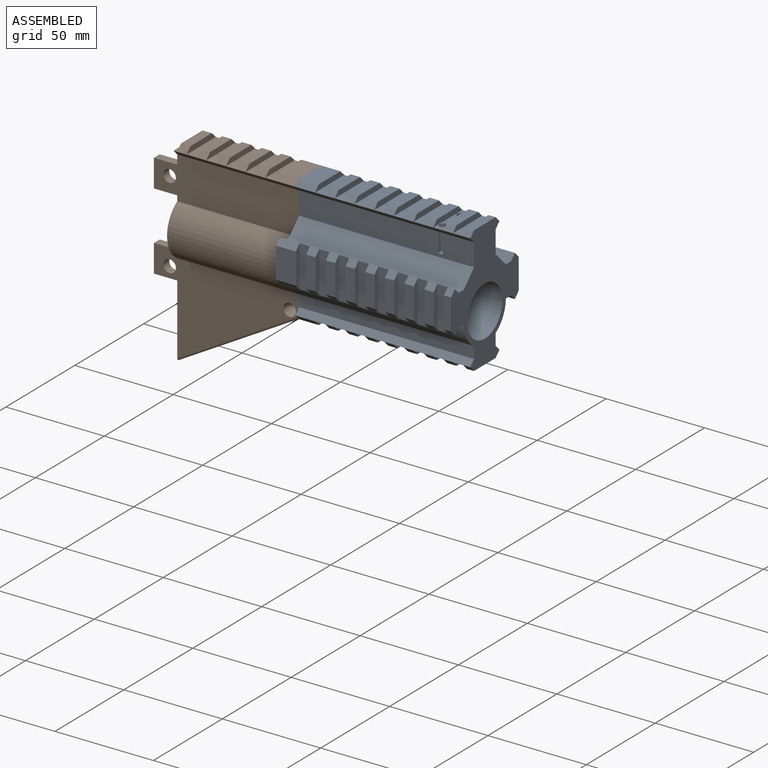
[diagram: assembled view]
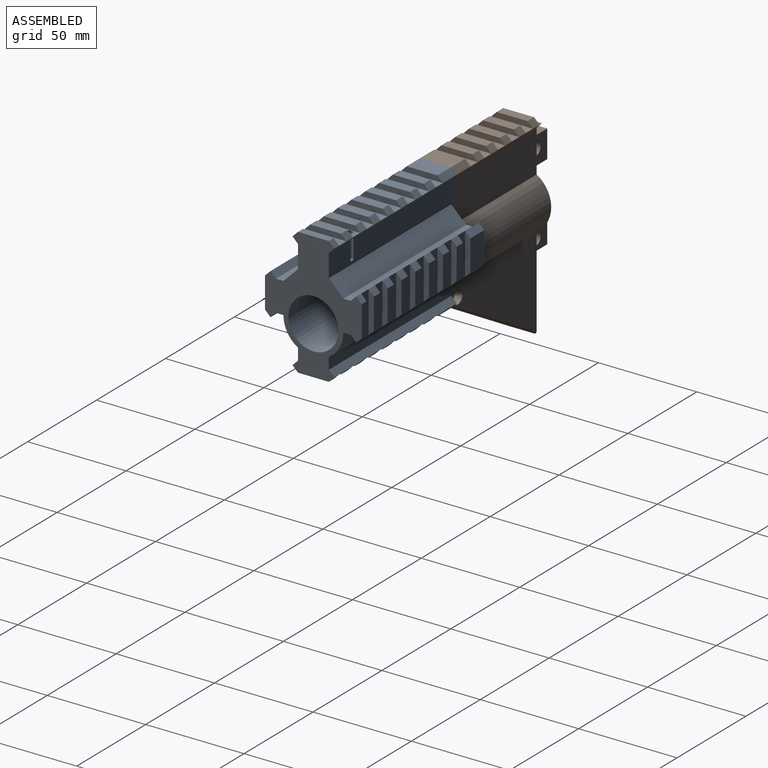
[diagram: assembled view, second angle]
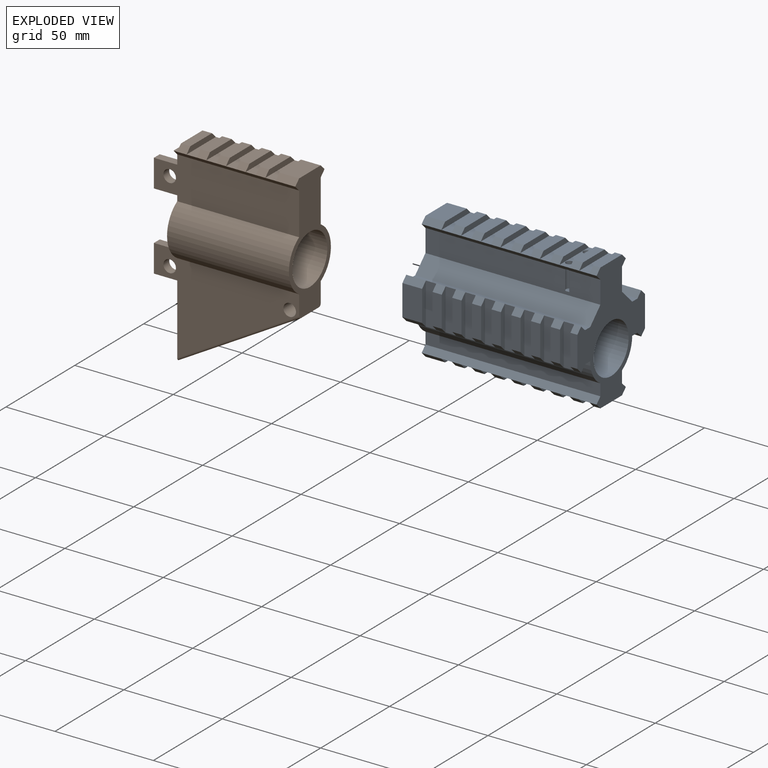
[diagram: exploded view]
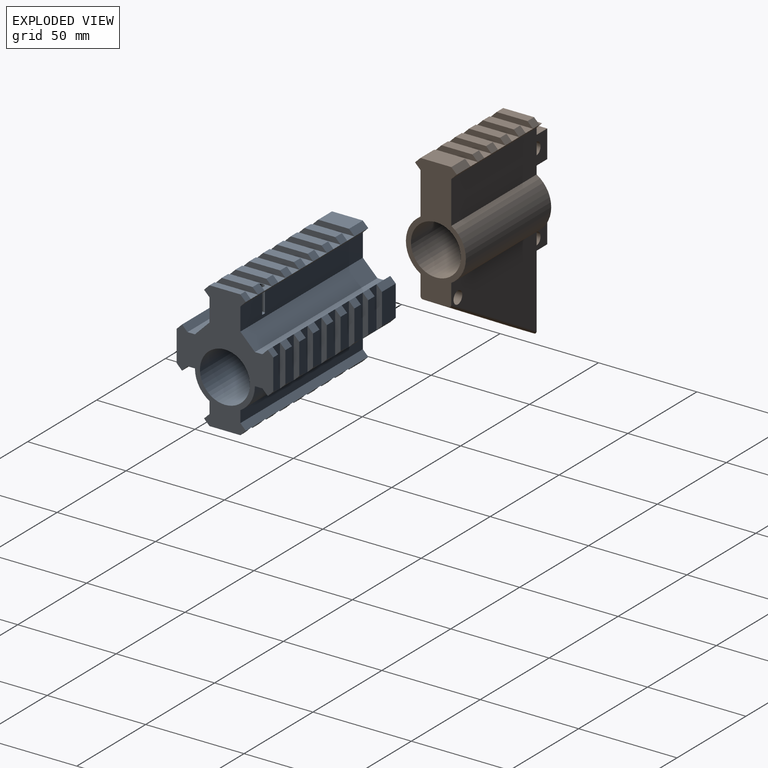
[diagram: exploded view, second angle]
ASSEMBLY  parts=2 mates=3
PART A: 231 faces, bbox 49.1x88.9x64.7 mm
  f0: plane 15.67x4.72mm, normal (-1,0,0), area 74mm2, adj f19,f27,f216,f224
  f1: plane 15.67x4.72mm, normal (-1,0,0), area 74mm2, adj f16,f24,f221,f225
  f2: plane 15.67x4.72mm, normal (-1,0,0), area 74mm2, adj f23,f31,f204,f218
  f3: plane 15.67x4.72mm, normal (-1,0,0), area 74mm2, adj f18,f26,f215,f219
  f4: plane 15.67x4.72mm, normal (-1,0,0), area 74mm2, adj f22,f30,f207,f212
  f5: plane 15.67x4.72mm, normal (-1,0,0), area 74mm2, adj f17,f25,f209,f222
  f6: plane 15.67x4.72mm, normal (-1,0,0), area 74mm2, adj f21,f29,f206,f210
  f7: plane 15.67x10.01mm, normal (-1,0,0), area 156.8mm2, adj f114,f118,f120,f203
  f8: plane 15.67x4.72mm, normal (1,0,0), area 74mm2, adj f32,f40,f199,f201
  f9: plane 15.67x4.72mm, normal (1,0,0), area 74mm2, adj f33,f41,f184,f198
  f10: plane 15.67x4.72mm, normal (1,0,0), area 74mm2, adj f34,f42,f193,f196
  f11: plane 15.67x4.72mm, normal (1,0,0), area 74mm2, adj f35,f43,f192,f202
  f12: plane 15.67x4.72mm, normal (1,0,0), area 74mm2, adj f36,f44,f187,f189
  f13: plane 15.67x3.56mm, normal (1,0,0), area 55.7mm2, adj f37,f45,f113,f186
  f14: plane 15.67x4.72mm, normal (1,0,0), area 74mm2, adj f38,f46,f181,f183
  f15: plane 15.67x4.72mm, normal (1,0,0), area 74mm2, adj f39,f47,f180,f190
  f16: plane 4.72x2.77mm, normal (-0.71,0,0.71), area 18.5mm2, adj f1,f117,f221,f225
  f17: plane 4.72x2.77mm, normal (-0.71,0,0.71), area 18.5mm2, adj f5,f117,f209,f222
  f18: plane 4.72x2.77mm, normal (-0.71,0,0.71), area 18.5mm2, adj f3,f117,f215,f219
  f19: plane 4.72x2.77mm, normal (-0.71,0,0.71), area 18.5mm2, adj f0,f117,f216,f224
  f20: plane 3.56x2.77mm, normal (-0.71,0,0.71), area 13.9mm2, adj f113,f117,f119,f213
  f21: plane 4.72x2.77mm, normal (-0.71,0,0.71), area 18.5mm2, adj f6,f117,f206,f210
  f22: plane 4.72x2.77mm, normal (-0.71,0,0.71), area 18.5mm2, adj f4,f117,f207,f212
  f23: plane 4.72x2.77mm, normal (-0.71,0,0.71), area 18.5mm2, adj f2,f117,f204,f218
  f24: plane 4.72x2.77mm, normal (-0.71,0,-0.71), area 18.5mm2, adj f1,f121,f221,f225
  f25: plane 4.72x2.77mm, normal (-0.71,0,-0.71), area 18.5mm2, adj f5,f121,f209,f222
  f26: plane 4.72x2.77mm, normal (-0.71,0,-0.71), area 18.5mm2, adj f3,f121,f215,f219
  f27: plane 4.72x2.77mm, normal (-0.71,0,-0.71), area 18.5mm2, adj f0,f121,f216,f224
  f28: plane 3.56x2.77mm, normal (-0.71,0,-0.71), area 13.9mm2, adj f113,f119,f121,f213
  f29: plane 4.72x2.77mm, normal (-0.71,0,-0.71), area 18.5mm2, adj f6,f121,f206,f210
  f30: plane 4.72x2.77mm, normal (-0.71,0,-0.71), area 18.5mm2, adj f4,f121,f207,f212
  f31: plane 4.72x2.77mm, normal (-0.71,0,-0.71), area 18.5mm2, adj f2,f121,f204,f218
  f32: plane 4.72x2.77mm, normal (0.71,0,0.71), area 18.5mm2, adj f8,f124,f199,f201
  f33: plane 4.72x2.77mm, normal (0.71,0,0.71), area 18.5mm2, adj f9,f124,f184,f198
  f34: plane 4.72x2.77mm, normal (0.71,0,0.71), area 18.5mm2, adj f10,f124,f193,f196
  f35: plane 4.72x2.77mm, normal (0.71,0,0.71), area 18.5mm2, adj f11,f124,f192,f202
  f36: plane 4.72x2.77mm, normal (0.71,0,0.71), area 18.5mm2, adj f12,f124,f187,f189
  f37: plane 3.56x2.77mm, normal (0.71,0,0.71), area 13.9mm2, adj f13,f113,f124,f186
  f38: plane 4.72x2.77mm, normal (0.71,0,0.71), area 18.5mm2, adj f14,f124,f181,f183
  f39: plane 4.72x2.77mm, normal (0.71,0,0.71), area 18.5mm2, adj f15,f124,f180,f190
  f40: plane 4.72x2.77mm, normal (0.71,0,-0.71), area 18.5mm2, adj f8,f128,f199,f201
  f41: plane 4.72x2.77mm, normal (0.71,0,-0.71), area 18.5mm2, adj f9,f128,f184,f198
  f42: plane 4.72x2.77mm, normal (0.71,0,-0.71), area 18.5mm2, adj f10,f128,f193,f196
  f43: plane 4.72x2.77mm, normal (0.71,0,-0.71), area 18.5mm2, adj f11,f128,f192,f202
  f44: plane 4.72x2.77mm, normal (0.71,0,-0.71), area 18.5mm2, adj f12,f128,f187,f189
  f45: plane 3.56x2.77mm, normal (0.71,0,-0.71), area 13.9mm2, adj f13,f113,f128,f186
  f46: plane 4.72x2.77mm, normal (0.71,0,-0.71), area 18.5mm2, adj f14,f128,f181,f183
  f47: plane 4.72x2.77mm, normal (0.71,0,-0.71), area 18.5mm2, adj f15,f128,f180,f190
  f48: plane 15.67x4.78mm, normal (0,0,-1), area 74.8mm2, adj f64,f72,f161,f178
  f49: plane 15.67x4.78mm, normal (0,0,-1), area 74.8mm2, adj f65,f73,f175,f176
  f50: plane 15.67x4.78mm, normal (0,0,-1), area 74.8mm2, adj f66,f74,f159,f170
  f51: plane 15.67x3.61mm, normal (0,0,-1), area 56.5mm2, adj f67,f75,f113,f169
  f52: plane 15.67x4.78mm, normal (0,0,-1), area 74.8mm2, adj f68,f76,f164,f167
  f53: plane 15.67x4.78mm, normal (0,0,-1), area 74.8mm2, adj f69,f77,f163,f171
  f54: plane 15.67x4.78mm, normal (0,0,-1), area 74.8mm2, adj f70,f78,f158,f165
  f55: plane 15.67x4.78mm, normal (0,0,-1), area 74.8mm2, adj f71,f79,f155,f173
  f56: plane 15.67x4.78mm, normal (0,0,1), area 74.8mm2, adj f83,f91,f145,f153
  f57: plane 15.67x4.78mm, normal (0,0,1), area 74.8mm2, adj f80,f88,f150,f154
  f58: plane 15.67x4.78mm, normal (0,0,1), area 74.8mm2, adj f81,f89,f147,f151
  f59: plane 15.67x4.78mm, normal (0,0,1), area 74.8mm2, adj f84,f92,f142,f144
  f60: plane 15.67x4.78mm, normal (0,0,1), area 74.8mm2, adj f85,f93,f139,f141
  f61: plane 15.67x4.78mm, normal (0,0,1), area 74.8mm2, adj f86,f94,f136,f138
  f62: plane 15.67x4.78mm, normal (0,0,1), area 74.8mm2, adj f87,f95,f133,f135
  f63: plane 15.67x10.01mm, normal (0,0,1), area 156.8mm2, adj f109,f111,f114,f132
  f64: plane 4.78x2.77mm, normal (-0.71,0,-0.71), area 18.7mm2, adj f48,f102,f161,f178
  f65: plane 4.78x2.77mm, normal (-0.71,0,-0.71), area 18.7mm2, adj f49,f102,f175,f176
  f66: plane 4.78x2.77mm, normal (-0.71,0,-0.71), area 18.7mm2, adj f50,f102,f159,f170
  f67: plane 3.61x2.77mm, normal (-0.71,0,-0.71), area 14.1mm2, adj f51,f102,f113,f169
  f68: plane 4.78x2.77mm, normal (-0.71,0,-0.71), area 18.7mm2, adj f52,f102,f164,f167
  f69: plane 4.78x2.77mm, normal (-0.71,0,-0.71), area 18.7mm2, adj f53,f102,f163,f171
  f70: plane 4.78x2.77mm, normal (-0.71,0,-0.71), area 18.7mm2, adj f54,f102,f158,f165
  f71: plane 4.78x2.77mm, normal (-0.71,0,-0.71), area 18.7mm2, adj f55,f102,f155,f173
  f72: plane 4.78x2.77mm, normal (0.71,0,-0.71), area 18.7mm2, adj f48,f106,f161,f178
  f73: plane 4.78x2.77mm, normal (0.71,0,-0.71), area 18.7mm2, adj f49,f106,f175,f176
  f74: plane 4.78x2.77mm, normal (0.71,0,-0.71), area 18.7mm2, adj f50,f106,f159,f170
  f75: plane 3.61x2.77mm, normal (0.71,0,-0.71), area 14.1mm2, adj f51,f106,f113,f169
  f76: plane 4.78x2.77mm, normal (0.71,0,-0.71), area 18.7mm2, adj f52,f106,f164,f167
  f77: plane 4.78x2.77mm, normal (0.71,0,-0.71), area 18.7mm2, adj f53,f106,f163,f171
  f78: plane 4.78x2.77mm, normal (0.71,0,-0.71), area 18.7mm2, adj f54,f106,f158,f165
  f79: plane 4.78x2.77mm, normal (0.71,0,-0.71), area 18.7mm2, adj f55,f106,f155,f173
  f80: plane 4.78x2.77mm, normal (0.71,0,0.71), area 18.7mm2, adj f57,f108,f150,f154
  f81: plane 4.78x2.77mm, normal (0.71,0,0.71), area 18.7mm2, adj f58,f108,f147,f151
  f82: plane 3.61x2.77mm, normal (0.71,0,0.71), area 14.1mm2, adj f108,f110,f113,f148
  f83: plane 4.78x2.77mm, normal (0.71,0,0.71), area 18.7mm2, adj f56,f108,f145,f153
  f84: plane 4.78x2.77mm, normal (0.71,0,0.71), area 18.7mm2, adj f59,f108,f142,f144
  f85: plane 4.78x2.77mm, normal (0.71,0,0.71), area 18.7mm2, adj f60,f108,f139,f141
  f86: plane 4.78x2.77mm, normal (0.71,0,0.71), area 18.7mm2, adj f61,f108,f136,f138
  f87: plane 4.78x2.77mm, normal (0.71,0,0.71), area 18.7mm2, adj f62,f108,f133,f135
  f88: plane 4.78x2.77mm, normal (-0.71,0,0.71), area 18.7mm2, adj f57,f98,f150,f154
  f89: plane 4.78x2.77mm, normal (-0.71,0,0.71), area 18.7mm2, adj f58,f98,f147,f151
  f90: plane 3.61x2.77mm, normal (-0.71,0,0.71), area 14.1mm2, adj f98,f110,f113,f148
  f91: plane 4.78x2.77mm, normal (-0.71,0,0.71), area 18.7mm2, adj f56,f98,f145,f153
  f92: plane 4.78x2.77mm, normal (-0.71,0,0.71), area 18.7mm2, adj f59,f98,f142,f144
  f93: plane 4.78x2.77mm, normal (-0.71,0,0.71), area 18.7mm2, adj f60,f98,f139,f141
  f94: plane 4.78x2.77mm, normal (-0.71,0,0.71), area 18.7mm2, adj f61,f98,f136,f138
  f95: plane 4.78x2.77mm, normal (-0.71,0,0.71), area 18.7mm2, adj f62,f98,f133,f135
  f96: plane 88.9x11.56mm, normal (1,0,0), area 1008mm2, adj f108,f113,f114,f126,f227,f228
  f97: cylinder r=15.24mm len=88.9mm, axis (0,1,0), area 1390.9mm2, adj f107,f113,f114,f127
  f98: plane 88.9x2.77mm, normal (-0.71,0,-0.71), area 347.5mm2, adj f88,f89,f90,f91,f92,f93,f94,f95
  f99: plane 88.9x11.56mm, normal (-1,0,0), area 1008mm2, adj f98,f113,f114,f115,f229,f230
  f100: cylinder r=15.24mm len=88.9mm, axis (0,1,0), area 1390.9mm2, adj f101,f113,f114,f122
  f101: plane 88.9x5.95mm, normal (-1,0,0), area 529.3mm2, adj f100,f102,f113,f114
  f102: plane 88.9x2.77mm, normal (-0.71,0,0.71), area 348.1mm2, adj f64,f65,f66,f67,f68,f69,f70,f71
  f103: plane 10.01x2.77mm, normal (-0.71,0,-0.71), area 39.2mm2, adj f102,f104,f114,f156
  f104: plane 15.67x10.01mm, normal (0,0,-1), area 156.8mm2, adj f103,f105,f114,f156
  f105: plane 10.01x2.77mm, normal (0.71,0,-0.71), area 39.2mm2, adj f104,f106,f114,f156
  f106: plane 88.9x2.77mm, normal (0.71,0,0.71), area 348.1mm2, adj f72,f73,f74,f75,f76,f77,f78,f79
  f107: plane 88.9x5.95mm, normal (1,0,0), area 529.3mm2, adj f97,f106,f113,f114
  f108: plane 88.9x2.77mm, normal (0.71,0,-0.71), area 347.5mm2, adj f80,f81,f82,f83,f84,f85,f86,f87
  f109: plane 10.01x2.77mm, normal (0.71,0,0.71), area 39.2mm2, adj f63,f108,f114,f132
  f110: plane 15.67x3.61mm, normal (0,0,1), area 56.5mm2, adj f82,f90,f113,f148
  f111: plane 10.01x2.77mm, normal (-0.71,0,0.71), area 39.2mm2, adj f63,f98,f114,f132
  f112: cylinder r=12.7mm len=88.9mm, axis (0,1,0), area 7093.9mm2, adj f113,f114
  f113: plane 64.67x49.12mm, normal (0,-1,0), area 1283.2mm2, adj f13,f20,f28,f37,f45,f51,f67,f75
  f114: plane 64.67x49.12mm, normal (0,1,0), area 1283.2mm2, adj f7,f63,f96,f97,f98,f99,f100,f101
  f115: plane 88.9x7.4mm, normal (-0.71,0,0.71), area 930.9mm2, adj f99,f113,f114,f116
  f116: plane 88.9x3.78mm, normal (0,0,1), area 336.5mm2, adj f113,f114,f115,f117
  f117: plane 88.9x2.77mm, normal (0.71,0,0.71), area 348.1mm2, adj f16,f17,f18,f19,f20,f21,f22,f23
  f118: plane 10.01x2.77mm, normal (-0.71,0,0.71), area 39.2mm2, adj f7,f114,f117,f203
  f119: plane 15.67x3.56mm, normal (-1,0,0), area 55.7mm2, adj f20,f28,f113,f213
  f120: plane 10.01x2.77mm, normal (-0.71,0,-0.71), area 39.2mm2, adj f7,f114,f121,f203
  f121: plane 88.9x2.77mm, normal (0.71,0,-0.71), area 348.1mm2, adj f24,f25,f26,f27,f28,f29,f30,f31
  f122: plane 88.9x3.78mm, normal (0,0,-1), area 336.5mm2, adj f100,f113,f114,f121
  f123: plane 10.01x2.77mm, normal (0.71,0,0.71), area 39.2mm2, adj f114,f124,f130,f194
  f124: plane 88.9x2.77mm, normal (-0.71,0,0.71), area 348.1mm2, adj f32,f33,f34,f35,f36,f37,f38,f39
  f125: plane 88.9x3.78mm, normal (0,0,1), area 336.5mm2, adj f113,f114,f124,f126
  f126: plane 88.9x7.4mm, normal (0.71,0,0.71), area 930.9mm2, adj f96,f113,f114,f125
  f127: plane 88.9x3.78mm, normal (0,0,-1), area 336.5mm2, adj f97,f113,f114,f128
  f128: plane 88.9x2.77mm, normal (-0.71,0,-0.71), area 348.1mm2, adj f40,f41,f42,f43,f44,f45,f46,f47
  f129: plane 10.01x2.77mm, normal (0.71,0,-0.71), area 39.2mm2, adj f114,f128,f130,f194
  f130: plane 15.67x10.01mm, normal (1,0,0), area 156.8mm2, adj f114,f123,f129,f194
  f131: plane 21.21x5.23mm, normal (0,0,1), area 111mm2, adj f98,f108,f132,f133
  f132: plane 21.21x2.77mm, normal (0,-1,0), area 51.1mm2, adj f63,f109,f111,f131
  f133: plane 21.21x2.77mm, normal (0,1,0), area 51.1mm2, adj f62,f87,f95,f131
  f134: plane 21.21x5.23mm, normal (0,0,1), area 111mm2, adj f98,f108,f135,f136
  f135: plane 21.21x2.77mm, normal (0,-1,0), area 51.1mm2, adj f62,f87,f95,f134
  f136: plane 21.21x2.77mm, normal (0,1,0), area 51.1mm2, adj f61,f86,f94,f134
  f137: plane 21.21x5.23mm, normal (0,0,1), area 111mm2, adj f98,f108,f138,f139
  f138: plane 21.21x2.77mm, normal (0,-1,0), area 51.1mm2, adj f61,f86,f94,f137
  f139: plane 21.21x2.77mm, normal (0,1,0), area 51.1mm2, adj f60,f85,f93,f137
  f140: plane 21.21x5.23mm, normal (0,0,1), area 111mm2, adj f98,f108,f141,f142
  f141: plane 21.21x2.77mm, normal (0,-1,0), area 51.1mm2, adj f60,f85,f93,f140
  f142: plane 21.21x2.77mm, normal (0,1,0), area 51.1mm2, adj f59,f84,f92,f140
  f143: plane 21.21x5.23mm, normal (0,0,1), area 111mm2, adj f98,f108,f144,f145
  f144: plane 21.21x2.77mm, normal (0,-1,0), area 51.1mm2, adj f59,f84,f92,f143
  f145: plane 21.21x2.77mm, normal (0,1,0), area 51.1mm2, adj f56,f83,f91,f143
  f146: plane 21.21x5.23mm, normal (0,0,1), area 111mm2, adj f98,f108,f147,f148
  f147: plane 21.21x2.77mm, normal (0,-1,0), area 51.1mm2, adj f58,f81,f89,f146
  f148: plane 21.21x2.77mm, normal (0,1,0), area 51.1mm2, adj f82,f90,f110,f146
  f149: plane 21.21x5.23mm, normal (0,0,1), area 91.1mm2, adj f98,f108,f150,f151,f227,f229
  f150: plane 21.21x2.77mm, normal (0,-1,0), area 51.1mm2, adj f57,f80,f88,f149
  f151: plane 21.21x2.77mm, normal (0,1,0), area 51.1mm2, adj f58,f81,f89,f149
  f152: plane 21.21x5.23mm, normal (0,0,1), area 111mm2, adj f98,f108,f153,f154
  f153: plane 21.21x2.77mm, normal (0,-1,0), area 51.1mm2, adj f56,f83,f91,f152
  f154: plane 21.21x2.77mm, normal (0,1,0), area 51.1mm2, adj f57,f80,f88,f152
  f155: plane 21.21x2.77mm, normal (0,1,0), area 51.1mm2, adj f55,f71,f79,f157
  f156: plane 21.21x2.77mm, normal (0,-1,0), area 51.1mm2, adj f103,f104,f105,f157
  f157: plane 21.21x5.23mm, normal (0,0,-1), area 111mm2, adj f102,f106,f155,f156
  f158: plane 21.21x2.77mm, normal (0,1,0), area 51.1mm2, adj f54,f70,f78,f160
  f159: plane 21.21x2.77mm, normal (0,-1,0), area 51.1mm2, adj f50,f66,f74,f160
  f160: plane 21.21x5.23mm, normal (0,0,-1), area 111mm2, adj f102,f106,f158,f159
  f161: plane 21.21x2.77mm, normal (0,-1,0), area 51.1mm2, adj f48,f64,f72,f162
  f162: plane 21.21x5.23mm, normal (0,0,-1), area 111mm2, adj f102,f106,f161,f163
  f163: plane 21.21x2.77mm, normal (0,1,0), area 51.1mm2, adj f53,f69,f77,f162
  f164: plane 21.21x2.77mm, normal (0,1,0), area 51.1mm2, adj f52,f68,f76,f166
  f165: plane 21.21x2.77mm, normal (0,-1,0), area 51.1mm2, adj f54,f70,f78,f166
  f166: plane 21.21x5.23mm, normal (0,0,-1), area 111mm2, adj f102,f106,f164,f165
  f167: plane 21.21x2.77mm, normal (0,-1,0), area 51.1mm2, adj f52,f68,f76,f168
  f168: plane 21.21x5.23mm, normal (0,0,-1), area 111mm2, adj f102,f106,f167,f169
  f169: plane 21.21x2.77mm, normal (0,1,0), area 51.1mm2, adj f51,f67,f75,f168
  f170: plane 21.21x2.77mm, normal (0,1,0), area 51.1mm2, adj f50,f66,f74,f172
  f171: plane 21.21x2.77mm, normal (0,-1,0), area 51.1mm2, adj f53,f69,f77,f172
  f172: plane 21.21x5.23mm, normal (0,0,-1), area 111mm2, adj f102,f106,f170,f171
  f173: plane 21.21x2.77mm, normal (0,-1,0), area 51.1mm2, adj f55,f71,f79,f174
  f174: plane 21.21x5.23mm, normal (0,0,-1), area 111mm2, adj f102,f106,f173,f175
  f175: plane 21.21x2.77mm, normal (0,1,0), area 51.1mm2, adj f49,f65,f73,f174
  f176: plane 21.21x2.77mm, normal (0,-1,0), area 51.1mm2, adj f49,f65,f73,f177
  f177: plane 21.21x5.23mm, normal (0,0,-1), area 111mm2, adj f102,f106,f176,f178
  f178: plane 21.21x2.77mm, normal (0,1,0), area 51.1mm2, adj f48,f64,f72,f177
  f179: plane 21.21x5.28mm, normal (1,0,0), area 112.1mm2, adj f124,f128,f180,f181
  f180: plane 21.21x2.77mm, normal (0,1,0), area 51.1mm2, adj f15,f39,f47,f179
  f181: plane 21.21x2.77mm, normal (0,-1,0), area 51.1mm2, adj f14,f38,f46,f179
  f182: plane 21.21x5.28mm, normal (1,0,0), area 112.1mm2, adj f124,f128,f183,f184
  f183: plane 21.21x2.77mm, normal (0,1,0), area 51.1mm2, adj f14,f38,f46,f182
  f184: plane 21.21x2.77mm, normal (0,-1,0), area 51.1mm2, adj f9,f33,f41,f182
  f185: plane 21.21x5.28mm, normal (1,0,0), area 112.1mm2, adj f124,f128,f186,f187
  f186: plane 21.21x2.77mm, normal (0,1,0), area 51.1mm2, adj f13,f37,f45,f185
  f187: plane 21.21x2.77mm, normal (0,-1,0), area 51.1mm2, adj f12,f36,f44,f185
  f188: plane 21.21x5.28mm, normal (1,0,0), area 112.1mm2, adj f124,f128,f189,f190
  f189: plane 21.21x2.77mm, normal (0,1,0), area 51.1mm2, adj f12,f36,f44,f188
  f190: plane 21.21x2.77mm, normal (0,-1,0), area 51.1mm2, adj f15,f39,f47,f188
  f191: plane 21.21x5.28mm, normal (1,0,0), area 112.1mm2, adj f124,f128,f192,f193
  f192: plane 21.21x2.77mm, normal (0,1,0), area 51.1mm2, adj f11,f35,f43,f191
  f193: plane 21.21x2.77mm, normal (0,-1,0), area 51.1mm2, adj f10,f34,f42,f191
  f194: plane 21.21x2.77mm, normal (0,-1,0), area 51.1mm2, adj f123,f129,f130,f195
  f195: plane 21.21x5.28mm, normal (1,0,0), area 112.1mm2, adj f124,f128,f194,f196
  f196: plane 21.21x2.77mm, normal (0,1,0), area 51.1mm2, adj f10,f34,f42,f195
  f197: plane 21.21x5.28mm, normal (1,0,0), area 112.1mm2, adj f124,f128,f198,f199
  f198: plane 21.21x2.77mm, normal (0,1,0), area 51.1mm2, adj f9,f33,f41,f197
  f199: plane 21.21x2.77mm, normal (0,-1,0), area 51.1mm2, adj f8,f32,f40,f197
  f200: plane 21.21x5.28mm, normal (1,0,0), area 112.1mm2, adj f124,f128,f201,f202
  f201: plane 21.21x2.77mm, normal (0,1,0), area 51.1mm2, adj f8,f32,f40,f200
  f202: plane 21.21x2.77mm, normal (0,-1,0), area 51.1mm2, adj f11,f35,f43,f200
  f203: plane 21.21x2.77mm, normal (0,-1,0), area 51.1mm2, adj f7,f118,f120,f205
  f204: plane 21.21x2.77mm, normal (0,1,0), area 51.1mm2, adj f2,f23,f31,f205
  f205: plane 21.21x5.28mm, normal (-1,0,0), area 112.1mm2, adj f117,f121,f203,f204
  f206: plane 21.21x2.77mm, normal (0,-1,0), area 51.1mm2, adj f6,f21,f29,f208
  f207: plane 21.21x2.77mm, normal (0,1,0), area 51.1mm2, adj f4,f22,f30,f208
  f208: plane 21.21x5.28mm, normal (-1,0,0), area 112.1mm2, adj f117,f121,f206,f207
  f209: plane 21.21x2.77mm, normal (0,-1,0), area 51.1mm2, adj f5,f17,f25,f211
  f210: plane 21.21x2.77mm, normal (0,1,0), area 51.1mm2, adj f6,f21,f29,f211
  f211: plane 21.21x5.28mm, normal (-1,0,0), area 112.1mm2, adj f117,f121,f209,f210
  f212: plane 21.21x2.77mm, normal (0,-1,0), area 51.1mm2, adj f4,f22,f30,f214
  f213: plane 21.21x2.77mm, normal (0,1,0), area 51.1mm2, adj f20,f28,f119,f214
  f214: plane 21.21x5.28mm, normal (-1,0,0), area 112.1mm2, adj f117,f121,f212,f213
  f215: plane 21.21x2.77mm, normal (0,-1,0), area 51.1mm2, adj f3,f18,f26,f217
  f216: plane 21.21x2.77mm, normal (0,1,0), area 51.1mm2, adj f0,f19,f27,f217
  f217: plane 21.21x5.28mm, normal (-1,0,0), area 112.1mm2, adj f117,f121,f215,f216
  f218: plane 21.21x2.77mm, normal (0,-1,0), area 51.1mm2, adj f2,f23,f31,f220
  f219: plane 21.21x2.77mm, normal (0,1,0), area 51.1mm2, adj f3,f18,f26,f220
  f220: plane 21.21x5.28mm, normal (-1,0,0), area 112.1mm2, adj f117,f121,f218,f219
  f221: plane 21.21x2.77mm, normal (0,-1,0), area 51.1mm2, adj f1,f16,f24,f223
  f222: plane 21.21x2.77mm, normal (0,1,0), area 51.1mm2, adj f5,f17,f25,f223
  f223: plane 21.21x5.28mm, normal (-1,0,0), area 112.1mm2, adj f117,f121,f221,f222
  f224: plane 21.21x2.77mm, normal (0,-1,0), area 51.1mm2, adj f0,f19,f27,f226
  f225: plane 21.21x2.77mm, normal (0,1,0), area 51.1mm2, adj f1,f16,f24,f226
  f226: plane 21.21x5.28mm, normal (-1,0,0), area 112.1mm2, adj f117,f121,f224,f225
  f227: cylinder r=1.78mm len=12.7mm, axis (0,0,1), area 120.9mm2, adj f96,f108,f149,f228
  f228: plane 3.56x3.26mm, normal (0,0,1), area 9.5mm2, adj f96,f227
  f229: cylinder r=1.78mm len=12.7mm, axis (0,0,1), area 120.9mm2, adj f98,f99,f149,f230
  f230: plane 3.56x3.26mm, normal (0,0,1), area 9.5mm2, adj f99,f229
PART B: 64 faces, bbox 78.4x30.5x100.4 mm
  f0: plane 15.67x4.78mm, normal (0,0,1), area 74.8mm2, adj f5,f10,f41,f45
  f1: plane 15.67x4.78mm, normal (0,0,1), area 74.8mm2, adj f6,f11,f38,f42
  f2: plane 15.67x4.78mm, normal (0,0,1), area 74.8mm2, adj f7,f12,f35,f39
  f3: plane 15.67x4.78mm, normal (0,0,1), area 74.8mm2, adj f8,f13,f32,f36
  f4: plane 15.67x4.78mm, normal (0,0,1), area 74.8mm2, adj f9,f14,f30,f33
  f5: plane 4.78x2.77mm, normal (0,0.71,0.71), area 18.7mm2, adj f0,f25,f41,f45
  f6: plane 4.78x2.77mm, normal (0,0.71,0.71), area 18.7mm2, adj f1,f25,f38,f42
  f7: plane 4.78x2.77mm, normal (0,0.71,0.71), area 18.7mm2, adj f2,f25,f35,f39
  f8: plane 4.78x2.77mm, normal (0,0.71,0.71), area 18.7mm2, adj f3,f25,f32,f36
  f9: plane 4.78x2.77mm, normal (0,0.71,0.71), area 18.7mm2, adj f4,f25,f30,f33
  f10: plane 4.78x2.77mm, normal (0,-0.71,0.71), area 18.7mm2, adj f0,f29,f41,f45
  f11: plane 4.78x2.77mm, normal (0,-0.71,0.71), area 18.7mm2, adj f1,f29,f38,f42
  f12: plane 4.78x2.77mm, normal (0,-0.71,0.71), area 18.7mm2, adj f2,f29,f35,f39
  f13: plane 4.78x2.77mm, normal (0,-0.71,0.71), area 18.7mm2, adj f3,f29,f32,f36
  f14: plane 4.78x2.77mm, normal (0,-0.71,0.71), area 18.7mm2, adj f4,f29,f30,f33
  f15: plane 61.93x45.78mm, normal (0,-1,0), area 1696.1mm2, adj f20,f21,f22,f48,f49
  f16: plane 61.93x45.78mm, normal (0,1,0), area 1696.1mm2, adj f20,f21,f24,f47,f49
  f17: plane 61.93x21.5mm, normal (0,-1,0), area 1331.3mm2, adj f20,f22,f29,f49
  f18: plane 61.93x21.5mm, normal (0,1,0), area 1331.3mm2, adj f20,f24,f25,f49
  f19: plane 61.93x35.75mm, normal (0.5,0,-0.87), area 939mm2, adj f20,f47,f48,f49
  f20: plane 64.67x30.48mm, normal (1,0,0), area 795.2mm2, adj f15,f16,f17,f18,f19,f22,f23,f24
  f21: cylinder r=3.17mm len=15.67mm, axis (0,1,0), area 312.6mm2, adj f15,f16
  f22: cylinder r=15.24mm len=61.93mm, axis (1,0,0), area 1945.5mm2, adj f15,f17,f20,f49
  f23: cylinder r=12.7mm len=61.93mm, axis (1,0,0), area 4941.4mm2, adj f20,f49,f55,f61
  f24: cylinder r=15.24mm len=61.93mm, axis (1,0,0), area 1945.5mm2, adj f16,f18,f20,f49
  f25: plane 61.93x2.77mm, normal (0,0.71,-0.71), area 242.5mm2, adj f5,f6,f7,f8,f9,f18,f20,f26
  f26: plane 10.01x2.77mm, normal (0,0.71,0.71), area 39.2mm2, adj f20,f25,f27,f44
  f27: plane 15.67x10.01mm, normal (0,0,1), area 156.8mm2, adj f20,f26,f28,f44
  f28: plane 10.01x2.77mm, normal (0,-0.71,0.71), area 39.2mm2, adj f20,f27,f29,f44
  f29: plane 61.93x2.77mm, normal (0,-0.71,-0.71), area 242.5mm2, adj f10,f11,f12,f13,f14,f17,f20,f28
  f30: plane 21.21x2.77mm, normal (-1,0,0), area 51.1mm2, adj f4,f9,f14,f31
  f31: plane 21.21x1.88mm, normal (0,0,1), area 39.9mm2, adj f25,f29,f30,f49
  f32: plane 21.21x2.77mm, normal (-1,0,0), area 51.1mm2, adj f3,f8,f13,f34
  f33: plane 21.21x2.77mm, normal (1,0,0), area 51.1mm2, adj f4,f9,f14,f34
  f34: plane 21.21x5.23mm, normal (0,0,1), area 111mm2, adj f25,f29,f32,f33
  f35: plane 21.21x2.77mm, normal (-1,0,0), area 51.1mm2, adj f2,f7,f12,f37
  f36: plane 21.21x2.77mm, normal (1,0,0), area 51.1mm2, adj f3,f8,f13,f37
  f37: plane 21.21x5.23mm, normal (0,0,1), area 111mm2, adj f25,f29,f35,f36
  f38: plane 21.21x2.77mm, normal (-1,0,0), area 51.1mm2, adj f1,f6,f11,f40
  f39: plane 21.21x2.77mm, normal (1,0,0), area 51.1mm2, adj f2,f7,f12,f40
  f40: plane 21.21x5.23mm, normal (0,0,1), area 111mm2, adj f25,f29,f38,f39
  f41: plane 21.21x2.77mm, normal (-1,0,0), area 51.1mm2, adj f0,f5,f10,f43
  f42: plane 21.21x2.77mm, normal (1,0,0), area 51.1mm2, adj f1,f6,f11,f43
  f43: plane 21.21x5.23mm, normal (0,0,1), area 111mm2, adj f25,f29,f41,f42
  f44: plane 21.21x2.77mm, normal (-1,0,0), area 51.1mm2, adj f26,f27,f28,f46
  f45: plane 21.21x2.77mm, normal (1,0,0), area 51.1mm2, adj f0,f5,f10,f46
  f46: plane 21.21x5.23mm, normal (0,0,1), area 111mm2, adj f25,f29,f44,f45
  f47: cylinder r=1.27mm len=63.2mm, axis (0.87,0,0.5), area 142.6mm2, adj f16,f19,f20,f49
  f48: cylinder r=1.27mm len=63.2mm, axis (-0.87,0,-0.5), area 142.6mm2, adj f15,f19,f20,f49
  f49: plane 97.65x30.48mm, normal (-1,0,0), area 1186.1mm2, adj f15,f16,f17,f18,f19,f22,f23,f24
  f50: plane 15.88x4.24mm, normal (0,0,-1), area 67.3mm2, adj f51,f53,f54,f55
  f51: plane 15.88x14.07mm, normal (0,-1,0), area 191.8mm2, adj f49,f50,f52,f54,f63
  f52: plane 15.88x4.24mm, normal (0,0,1), area 67.3mm2, adj f49,f51,f53,f54
  f53: plane 15.88x14.07mm, normal (0,1,0), area 191.8mm2, adj f49,f50,f52,f54,f63
  f54: plane 14.07x4.24mm, normal (-1,0,0), area 59.7mm2, adj f50,f51,f52,f53
  f55: plane 4.24x0.18mm, normal (1,0,0), area 0.5mm2, adj f23,f50
  f56: plane 15.88x4.24mm, normal (0,0,1), area 67.3mm2, adj f57,f59,f60,f61
  f57: plane 15.88x14.07mm, normal (0,1,0), area 191.8mm2, adj f49,f56,f58,f60,f62
  f58: plane 15.88x4.24mm, normal (0,0,-1), area 67.3mm2, adj f49,f57,f59,f60
  f59: plane 15.88x14.07mm, normal (0,-1,0), area 191.8mm2, adj f49,f56,f58,f60,f62
  f60: plane 14.07x4.24mm, normal (-1,0,0), area 59.7mm2, adj f56,f57,f58,f59
  f61: plane 4.24x0.18mm, normal (1,0,0), area 0.5mm2, adj f23,f56
  f62: cylinder r=3.17mm len=6.35mm, axis (0,1,0), area 84.6mm2, adj f57,f59
  f63: cylinder r=3.17mm len=6.35mm, axis (0,1,0), area 84.6mm2, adj f51,f53
PLACE A rot(axis=(0,0,1),90deg) t=(39.46,0.08,9.74)mm
PLACE B t=(-73.26,0.08,-5.5)mm fixed
MATE planar A.f63 <-> B.f27  axis (0,0,1) through (44.46,0.08,49.84)mm
MATE planar B.f20 <-> A.f114  axis (1,0,0) through (39.46,0.08,20.39)mm
MATE cylindrical A.f112 <-> B.f22  axis (-1,0,0) through (39.46,0.08,9.74)mm
